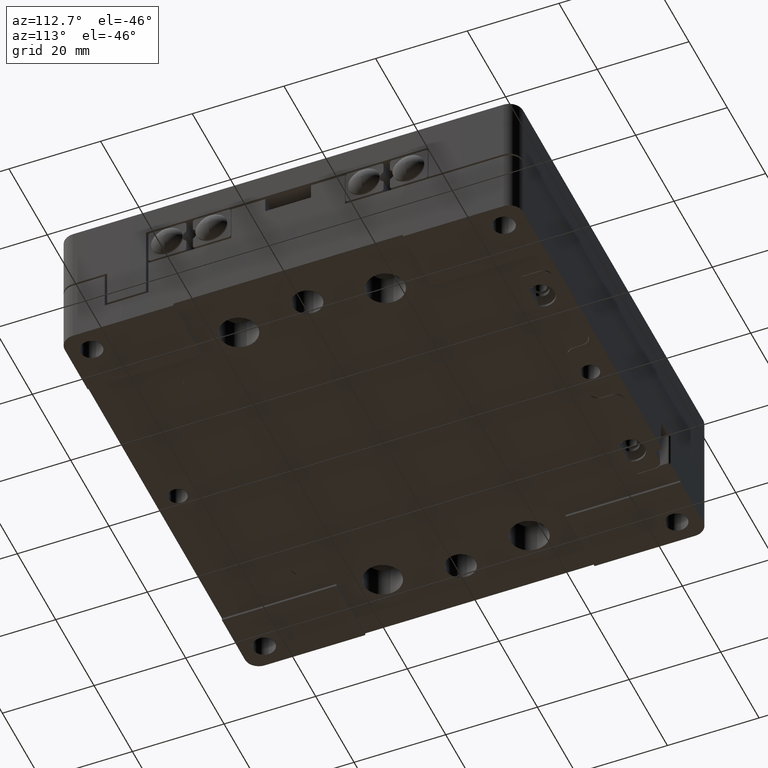
[diagram: clean part render]
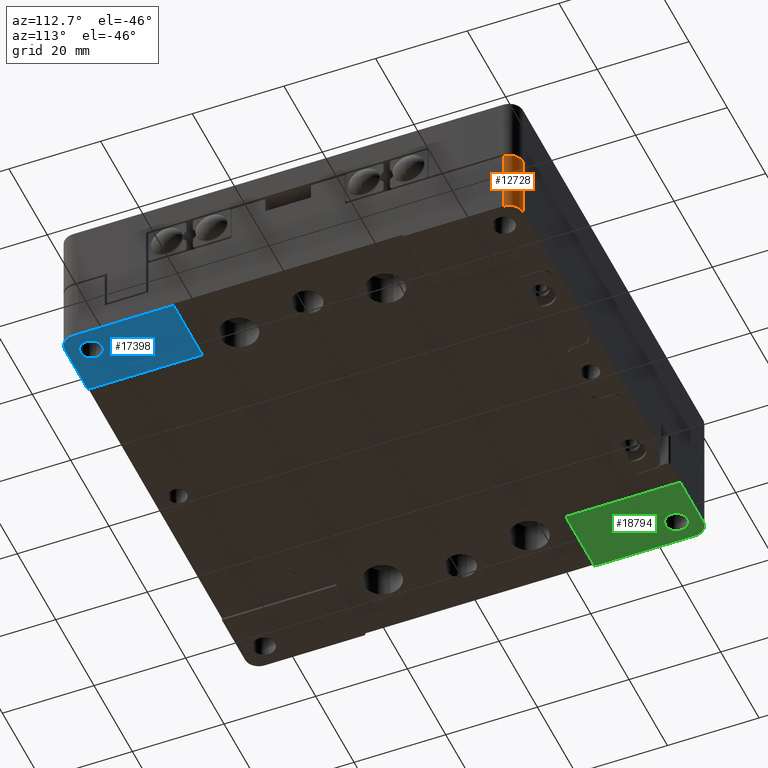
[diagram: same view with three faces highlighted in distinct colors, each labeled with its STEP entity id]
A machine part, auxiliary view with three faces highlighted in distinct colors.
Their STEP definitions:

[orange] entity #12728 — the highlighted cylindrical surface (edge-blend (fillet) strip) has radius 3 mm, axis along (0, 0, 1).
#182 = ORIENTED_EDGE ( 'NONE', *, *, #7906, .T. ) ;
#201 = CARTESIAN_POINT ( 'NONE',  ( 50.00000000000000000, 47.00000000000000000, 0.000000000000000000 ) ) ;
#541 = LINE ( 'NONE', #26119, #14412 ) ;
#1560 = CARTESIAN_POINT ( 'NONE',  ( 47.00000000000000000, 47.00000000000000000, 0.000000000000000000 ) ) ;
#2537 = DIRECTION ( 'NONE',  ( 0.000000000000000000, 0.000000000000000000, -1.000000000000000000 ) ) ;
#2674 = DIRECTION ( 'NONE',  ( 1.000000000000000000, 0.000000000000000000, 0.000000000000000000 ) ) ;
#2850 = CYLINDRICAL_SURFACE ( 'NONE', #13531, 3.000000000000002665 ) ;
#3572 = DIRECTION ( 'NONE',  ( 0.000000000000000000, 0.000000000000000000, 1.000000000000000000 ) ) ;
#4339 = VECTOR ( 'NONE', #3572, 1000.000000000000000 ) ;
#5930 = EDGE_CURVE ( 'NONE', #7954, #11963, #16285, .T. ) ;
#7206 = AXIS2_PLACEMENT_3D ( 'NONE', #15389, #2537, #2674 ) ;
#7906 = EDGE_CURVE ( 'NONE', #11638, #11963, #24997, .T. ) ;
#7954 = VERTEX_POINT ( 'NONE', #26864 ) ;
#8051 = ORIENTED_EDGE ( 'NONE', *, *, #5930, .F. ) ;
#8515 = ORIENTED_EDGE ( 'NONE', *, *, #14146, .F. ) ;
#10241 = AXIS2_PLACEMENT_3D ( 'NONE', #1560, #15948, #14118 ) ;
#11375 = EDGE_CURVE ( 'NONE', #14891, #7954, #13004, .T. ) ;
#11638 = VERTEX_POINT ( 'NONE', #18822 ) ;
#11963 = VERTEX_POINT ( 'NONE', #201 ) ;
#12100 = ORIENTED_EDGE ( 'NONE', *, *, #11375, .F. ) ;
#12728 = ADVANCED_FACE ( 'NONE', ( #26213 ), #2850, .T. ) ;
#13004 = CIRCLE ( 'NONE', #7206, 3.000000000000002665 ) ;
#13531 = AXIS2_PLACEMENT_3D ( 'NONE', #23977, #26352, #17386 ) ;
#13743 = DIRECTION ( 'NONE',  ( 0.000000000000000000, 0.000000000000000000, -1.000000000000000000 ) ) ;
#14118 = DIRECTION ( 'NONE',  ( 1.000000000000000000, 0.000000000000000000, 0.000000000000000000 ) ) ;
#14146 = EDGE_CURVE ( 'NONE', #11638, #14891, #541, .T. ) ;
#14412 = VECTOR ( 'NONE', #13743, 1000.000000000000000 ) ;
#14891 = VERTEX_POINT ( 'NONE', #17327 ) ;
#15389 = CARTESIAN_POINT ( 'NONE',  ( 47.00000000000000000, 47.00000000000000000, -14.50000000000000000 ) ) ;
#15898 = EDGE_LOOP ( 'NONE', ( #8515, #182, #8051, #12100 ) ) ;
#15948 = DIRECTION ( 'NONE',  ( 0.000000000000000000, 0.000000000000000000, -1.000000000000000000 ) ) ;
#16285 = LINE ( 'NONE', #22737, #4339 ) ;
#17327 = CARTESIAN_POINT ( 'NONE',  ( 47.00000000000000000, 50.00000000000000000, -14.50000000000000000 ) ) ;
#17386 = DIRECTION ( 'NONE',  ( 1.000000000000000000, 0.000000000000000000, 0.000000000000000000 ) ) ;
#18822 = CARTESIAN_POINT ( 'NONE',  ( 47.00000000000000000, 50.00000000000000000, 0.000000000000000000 ) ) ;
#22737 = CARTESIAN_POINT ( 'NONE',  ( 50.00000000000000000, 47.00000000000000000, 0.000000000000000000 ) ) ;
#23977 = CARTESIAN_POINT ( 'NONE',  ( 47.00000000000000000, 47.00000000000000000, -44.22207999999999828 ) ) ;
#24997 = CIRCLE ( 'NONE', #10241, 3.000000000000002665 ) ;
#26119 = CARTESIAN_POINT ( 'NONE',  ( 47.00000000000000000, 50.00000000000000000, -14.50000000000000000 ) ) ;
#26213 = FACE_OUTER_BOUND ( 'NONE', #15898, .T. ) ;
#26352 = DIRECTION ( 'NONE',  ( 0.000000000000000000, 0.000000000000000000, 1.000000000000000000 ) ) ;
#26864 = CARTESIAN_POINT ( 'NONE',  ( 50.00000000000000000, 47.00000000000000000, -14.50000000000000000 ) ) ;

[blue] entity #17398 — the highlighted planar face has unit normal (0, 0, -1).
#16 = CARTESIAN_POINT ( 'NONE',  ( 45.00000000000000000, -45.00000000000000000, -14.50000000000000000 ) ) ;
#219 = CARTESIAN_POINT ( 'NONE',  ( 35.00000000000000000, -50.00000000000000000, -14.50000000000000000 ) ) ;
#1311 = ORIENTED_EDGE ( 'NONE', *, *, #3483, .T. ) ;
#1487 = ORIENTED_EDGE ( 'NONE', *, *, #20051, .F. ) ;
#1676 = DIRECTION ( 'NONE',  ( 0.000000000000000000, 1.000000000000000000, 0.000000000000000000 ) ) ;
#2682 = DIRECTION ( 'NONE',  ( 0.000000000000000000, 1.000000000000000000, 0.000000000000000000 ) ) ;
#3483 = EDGE_CURVE ( 'NONE', #15664, #21749, #5088, .T. ) ;
#3566 = VECTOR ( 'NONE', #26046, 1000.000000000000000 ) ;
#3574 = DIRECTION ( 'NONE',  ( 0.000000000000000000, -1.000000000000000000, 0.000000000000000000 ) ) ;
#4178 = DIRECTION ( 'NONE',  ( 1.000000000000000000, 0.000000000000000000, 0.000000000000000000 ) ) ;
#5088 = CIRCLE ( 'NONE', #12221, 2.399999999999999467 ) ;
#6147 = ORIENTED_EDGE ( 'NONE', *, *, #26562, .T. ) ;
#6718 = CARTESIAN_POINT ( 'NONE',  ( 42.60000000000000142, -45.00000000000000000, -14.50000000000000000 ) ) ;
#6788 = CARTESIAN_POINT ( 'NONE',  ( 47.00000000000000000, -47.00000000000000000, -14.50000000000000000 ) ) ;
#6879 = CARTESIAN_POINT ( 'NONE',  ( -50.00000000000000000, -50.00000000000000000, -14.50000000000000000 ) ) ;
#8000 = CARTESIAN_POINT ( 'NONE',  ( 45.00000000000000000, -45.00000000000000000, -14.50000000000000000 ) ) ;
#8042 = PLANE ( 'NONE',  #8997 ) ;
#8997 = AXIS2_PLACEMENT_3D ( 'NONE', #16556, #27342, #3574 ) ;
#9957 = LINE ( 'NONE', #6879, #3566 ) ;
#10069 = CARTESIAN_POINT ( 'NONE',  ( 47.00000000000000000, -50.00000000000000000, -14.50000000000000000 ) ) ;
#10185 = ORIENTED_EDGE ( 'NONE', *, *, #20724, .T. ) ;
#10798 = EDGE_LOOP ( 'NONE', ( #1311, #13688 ) ) ;
#11009 = VERTEX_POINT ( 'NONE', #219 ) ;
#11568 = VERTEX_POINT ( 'NONE', #17899 ) ;
#12221 = AXIS2_PLACEMENT_3D ( 'NONE', #16, #17024, #4178 ) ;
#12362 = FACE_OUTER_BOUND ( 'NONE', #13472, .T. ) ;
#12789 = DIRECTION ( 'NONE',  ( -1.000000000000000000, 0.000000000000000000, 0.000000000000000000 ) ) ;
#12870 = EDGE_CURVE ( 'NONE', #21749, #15664, #21140, .T. ) ;
#12930 = DIRECTION ( 'NONE',  ( 0.000000000000000000, 0.000000000000000000, 1.000000000000000000 ) ) ;
#12952 = CARTESIAN_POINT ( 'NONE',  ( 35.00000000000000000, -25.00000000000000000, -14.50000000000000000 ) ) ;
#13222 = EDGE_CURVE ( 'NONE', #11568, #17465, #21852, .T. ) ;
#13472 = EDGE_LOOP ( 'NONE', ( #10185, #6147, #13648, #1487, #26312 ) ) ;
#13648 = ORIENTED_EDGE ( 'NONE', *, *, #13222, .F. ) ;
#13688 = ORIENTED_EDGE ( 'NONE', *, *, #12870, .T. ) ;
#14012 = DIRECTION ( 'NONE',  ( 1.000000000000000000, 0.000000000000000000, 0.000000000000000000 ) ) ;
#14059 = VECTOR ( 'NONE', #14203, 1000.000000000000000 ) ;
#14203 = DIRECTION ( 'NONE',  ( 1.000000000000000000, 0.000000000000000000, 0.000000000000000000 ) ) ;
#15664 = VERTEX_POINT ( 'NONE', #27346 ) ;
#16310 = EDGE_CURVE ( 'NONE', #11009, #24242, #9957, .T. ) ;
#16556 = CARTESIAN_POINT ( 'NONE',  ( -50.00000000000000000, -50.00000000000000000, -14.50000000000000000 ) ) ;
#17024 = DIRECTION ( 'NONE',  ( 0.000000000000000000, 0.000000000000000000, 1.000000000000000000 ) ) ;
#17398 = ADVANCED_FACE ( 'NONE', ( #12362, #18673 ), #8042, .T. ) ;
#17465 = VERTEX_POINT ( 'NONE', #22739 ) ;
#17899 = CARTESIAN_POINT ( 'NONE',  ( 50.00000000000000000, -47.00000000000000000, -14.50000000000000000 ) ) ;
#18428 = CARTESIAN_POINT ( 'NONE',  ( 35.00000000000000000, -25.00000000000000000, -14.50000000000000000 ) ) ;
#18673 = FACE_BOUND ( 'NONE', #10798, .T. ) ;
#18893 = AXIS2_PLACEMENT_3D ( 'NONE', #8000, #22971, #14012 ) ;
#18955 = LINE ( 'NONE', #24849, #14059 ) ;
#19806 = VECTOR ( 'NONE', #1676, 1000.000000000000000 ) ;
#20051 = EDGE_CURVE ( 'NONE', #24242, #11568, #20285, .T. ) ;
#20285 = CIRCLE ( 'NONE', #23871, 3.000000000000002665 ) ;
#20724 = EDGE_CURVE ( 'NONE', #11009, #24779, #26709, .T. ) ;
#21140 = CIRCLE ( 'NONE', #18893, 2.399999999999999467 ) ;
#21749 = VERTEX_POINT ( 'NONE', #6718 ) ;
#21852 = LINE ( 'NONE', #25903, #23843 ) ;
#22739 = CARTESIAN_POINT ( 'NONE',  ( 50.00000000000000000, -25.00000000000000000, -14.50000000000000000 ) ) ;
#22971 = DIRECTION ( 'NONE',  ( 0.000000000000000000, 0.000000000000000000, 1.000000000000000000 ) ) ;
#23843 = VECTOR ( 'NONE', #2682, 1000.000000000000000 ) ;
#23871 = AXIS2_PLACEMENT_3D ( 'NONE', #6788, #12930, #12789 ) ;
#24242 = VERTEX_POINT ( 'NONE', #10069 ) ;
#24779 = VERTEX_POINT ( 'NONE', #12952 ) ;
#24849 = CARTESIAN_POINT ( 'NONE',  ( 65.00000000000000000, -25.00000000000000000, -14.50000000000000000 ) ) ;
#25903 = CARTESIAN_POINT ( 'NONE',  ( 50.00000000000000000, 0.000000000000000000, -14.50000000000000000 ) ) ;
#26046 = DIRECTION ( 'NONE',  ( 1.000000000000000000, 0.000000000000000000, 0.000000000000000000 ) ) ;
#26312 = ORIENTED_EDGE ( 'NONE', *, *, #16310, .F. ) ;
#26562 = EDGE_CURVE ( 'NONE', #24779, #17465, #18955, .T. ) ;
#26709 = LINE ( 'NONE', #18428, #19806 ) ;
#27342 = DIRECTION ( 'NONE',  ( 0.000000000000000000, 0.000000000000000000, -1.000000000000000000 ) ) ;
#27346 = CARTESIAN_POINT ( 'NONE',  ( 47.39999999999999858, -45.00000000000000000, -14.50000000000000000 ) ) ;

[green] entity #18794 — the highlighted planar face has unit normal (0, 0, -1).
#386 = FACE_OUTER_BOUND ( 'NONE', #11573, .T. ) ;
#443 = AXIS2_PLACEMENT_3D ( 'NONE', #20699, #1155, #9650 ) ;
#630 = CARTESIAN_POINT ( 'NONE',  ( -47.39999999999999858, 45.00000000000000000, -14.50000000000000000 ) ) ;
#1155 = DIRECTION ( 'NONE',  ( 0.000000000000000000, 0.000000000000000000, 1.000000000000000000 ) ) ;
#1163 = CARTESIAN_POINT ( 'NONE',  ( -65.00000000000000000, 25.00000000000000000, -14.50000000000000000 ) ) ;
#1964 = CIRCLE ( 'NONE', #4186, 3.000000000000002665 ) ;
#1967 = CARTESIAN_POINT ( 'NONE',  ( -47.00000000000000000, 50.00000000000000000, -14.50000000000000000 ) ) ;
#2204 = ORIENTED_EDGE ( 'NONE', *, *, #13162, .F. ) ;
#2563 = VERTEX_POINT ( 'NONE', #4245 ) ;
#2760 = DIRECTION ( 'NONE',  ( 1.000000000000000000, 0.000000000000000000, 0.000000000000000000 ) ) ;
#2980 = CARTESIAN_POINT ( 'NONE',  ( -50.00000000000000000, 0.000000000000000000, -14.50000000000000000 ) ) ;
#4092 = ORIENTED_EDGE ( 'NONE', *, *, #11061, .T. ) ;
#4186 = AXIS2_PLACEMENT_3D ( 'NONE', #11072, #23798, #26184 ) ;
#4245 = CARTESIAN_POINT ( 'NONE',  ( -50.00000000000000000, 25.00000000000000000, -14.50000000000000000 ) ) ;
#5030 = CARTESIAN_POINT ( 'NONE',  ( -35.00000000000000000, 25.00000000000000000, -14.50000000000000000 ) ) ;
#5235 = ORIENTED_EDGE ( 'NONE', *, *, #7930, .T. ) ;
#5514 = CARTESIAN_POINT ( 'NONE',  ( -35.00000000000000000, 25.00000000000000000, -14.50000000000000000 ) ) ;
#6250 = LINE ( 'NONE', #12261, #20239 ) ;
#6436 = VERTEX_POINT ( 'NONE', #22979 ) ;
#6780 = DIRECTION ( 'NONE',  ( 0.000000000000000000, -1.000000000000000000, 0.000000000000000000 ) ) ;
#6978 = EDGE_LOOP ( 'NONE', ( #27377, #5235 ) ) ;
#7930 = EDGE_CURVE ( 'NONE', #23002, #27090, #21416, .T. ) ;
#8133 = EDGE_CURVE ( 'NONE', #22719, #2563, #18463, .T. ) ;
#9650 = DIRECTION ( 'NONE',  ( 1.000000000000000000, 0.000000000000000000, 0.000000000000000000 ) ) ;
#9811 = LINE ( 'NONE', #2980, #14317 ) ;
#9997 = ORIENTED_EDGE ( 'NONE', *, *, #21814, .T. ) ;
#11061 = EDGE_CURVE ( 'NONE', #2563, #25437, #9811, .T. ) ;
#11072 = CARTESIAN_POINT ( 'NONE',  ( -47.00000000000000000, 47.00000000000000000, -14.50000000000000000 ) ) ;
#11366 = DIRECTION ( 'NONE',  ( 0.000000000000000000, 1.000000000000000000, 0.000000000000000000 ) ) ;
#11573 = EDGE_LOOP ( 'NONE', ( #9997, #12546, #4092, #2204, #13431 ) ) ;
#12261 = CARTESIAN_POINT ( 'NONE',  ( -50.00000000000000000, 50.00000000000000000, -14.50000000000000000 ) ) ;
#12546 = ORIENTED_EDGE ( 'NONE', *, *, #8133, .T. ) ;
#12781 = DIRECTION ( 'NONE',  ( 0.000000000000000000, 0.000000000000000000, -1.000000000000000000 ) ) ;
#13061 = CARTESIAN_POINT ( 'NONE',  ( -50.00000000000000000, -50.00000000000000000, -14.50000000000000000 ) ) ;
#13162 = EDGE_CURVE ( 'NONE', #24227, #25437, #1964, .T. ) ;
#13431 = ORIENTED_EDGE ( 'NONE', *, *, #13917, .F. ) ;
#13917 = EDGE_CURVE ( 'NONE', #6436, #24227, #6250, .T. ) ;
#14317 = VECTOR ( 'NONE', #11366, 1000.000000000000000 ) ;
#16496 = DIRECTION ( 'NONE',  ( -1.000000000000000000, 0.000000000000000000, 0.000000000000000000 ) ) ;
#16613 = AXIS2_PLACEMENT_3D ( 'NONE', #13061, #12781, #6780 ) ;
#17114 = PLANE ( 'NONE',  #16613 ) ;
#17812 = CARTESIAN_POINT ( 'NONE',  ( -50.00000000000000000, 47.00000000000000000, -14.50000000000000000 ) ) ;
#18463 = LINE ( 'NONE', #1163, #21428 ) ;
#18563 = DIRECTION ( 'NONE',  ( -1.000000000000000000, 0.000000000000000000, 0.000000000000000000 ) ) ;
#18794 = ADVANCED_FACE ( 'NONE', ( #386, #18953 ), #17114, .T. ) ;
#18953 = FACE_BOUND ( 'NONE', #6978, .T. ) ;
#19472 = CARTESIAN_POINT ( 'NONE',  ( -42.60000000000000142, 45.00000000000000000, -14.50000000000000000 ) ) ;
#19545 = CARTESIAN_POINT ( 'NONE',  ( -45.00000000000000000, 45.00000000000000000, -14.50000000000000000 ) ) ;
#20239 = VECTOR ( 'NONE', #18563, 1000.000000000000000 ) ;
#20447 = AXIS2_PLACEMENT_3D ( 'NONE', #19545, #25988, #2760 ) ;
#20699 = CARTESIAN_POINT ( 'NONE',  ( -45.00000000000000000, 45.00000000000000000, -14.50000000000000000 ) ) ;
#21416 = CIRCLE ( 'NONE', #443, 2.399999999999999467 ) ;
#21428 = VECTOR ( 'NONE', #16496, 1000.000000000000000 ) ;
#21814 = EDGE_CURVE ( 'NONE', #6436, #22719, #26164, .T. ) ;
#22719 = VERTEX_POINT ( 'NONE', #5514 ) ;
#22979 = CARTESIAN_POINT ( 'NONE',  ( -35.00000000000000000, 50.00000000000000000, -14.50000000000000000 ) ) ;
#23002 = VERTEX_POINT ( 'NONE', #630 ) ;
#23116 = CIRCLE ( 'NONE', #20447, 2.399999999999999467 ) ;
#23798 = DIRECTION ( 'NONE',  ( 0.000000000000000000, 0.000000000000000000, 1.000000000000000000 ) ) ;
#23928 = DIRECTION ( 'NONE',  ( 0.000000000000000000, -1.000000000000000000, 0.000000000000000000 ) ) ;
#24227 = VERTEX_POINT ( 'NONE', #1967 ) ;
#25437 = VERTEX_POINT ( 'NONE', #17812 ) ;
#25988 = DIRECTION ( 'NONE',  ( 0.000000000000000000, 0.000000000000000000, 1.000000000000000000 ) ) ;
#26164 = LINE ( 'NONE', #5030, #27459 ) ;
#26184 = DIRECTION ( 'NONE',  ( -1.000000000000000000, 0.000000000000000000, 0.000000000000000000 ) ) ;
#26212 = EDGE_CURVE ( 'NONE', #27090, #23002, #23116, .T. ) ;
#27090 = VERTEX_POINT ( 'NONE', #19472 ) ;
#27377 = ORIENTED_EDGE ( 'NONE', *, *, #26212, .T. ) ;
#27459 = VECTOR ( 'NONE', #23928, 1000.000000000000000 ) ;